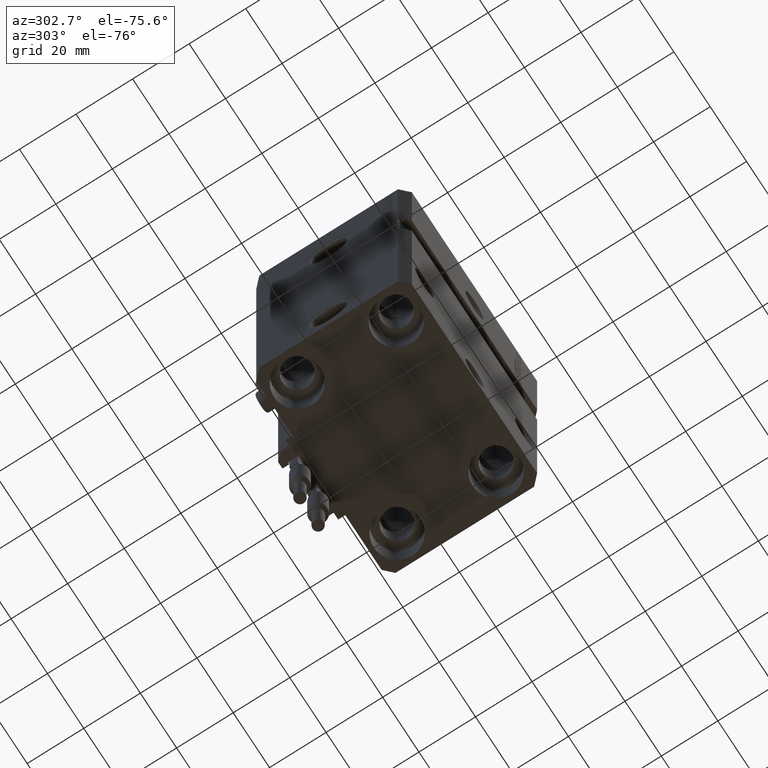
[diagram: clean part render]
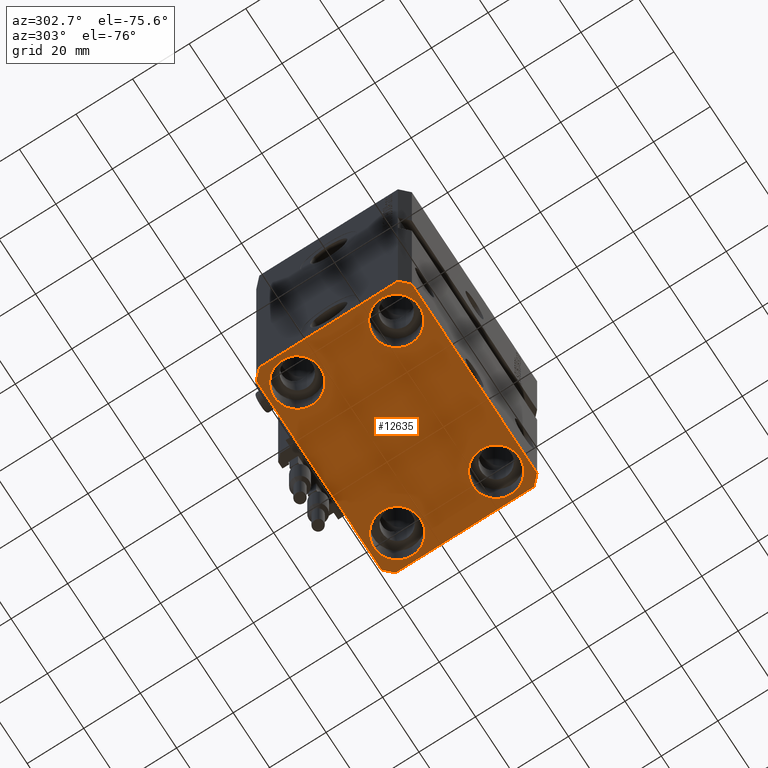
[diagram: same view with one face highlighted and labeled with its STEP entity id]
A machine part, auxiliary view. The second image highlights one B-rep face of the part: STEP entity #12635.
In plain terms, the highlighted planar face has unit normal (0, 0, 1).
Its self-contained STEP definition (entity closure, byte-faithful):
#43 = CARTESIAN_POINT ( 'NONE',  ( -37.49999999999999289, -24.50000000000000000, -110.0000000000000000 ) ) ;
#117 = AXIS2_PLACEMENT_3D ( 'NONE', #2500, #28720, #44000 ) ;
#132 = FACE_BOUND ( 'NONE', #6928, .T. ) ;
#369 = CARTESIAN_POINT ( 'NONE',  ( 37.49999999999999289, -24.50000000000000000, -110.0000000000000000 ) ) ;
#447 = ORIENTED_EDGE ( 'NONE', *, *, #35967, .T. ) ;
#618 = ORIENTED_EDGE ( 'NONE', *, *, #4493, .T. ) ;
#925 = VERTEX_POINT ( 'NONE', #22800 ) ;
#958 = VERTEX_POINT ( 'NONE', #369 ) ;
#1194 = EDGE_CURVE ( 'NONE', #40212, #3404, #39016, .T. ) ;
#2201 = AXIS2_PLACEMENT_3D ( 'NONE', #25204, #42242, #30023 ) ;
#2309 = DIRECTION ( 'NONE',  ( 1.000000000000000000, 0.000000000000000000, 0.000000000000000000 ) ) ;
#2500 = CARTESIAN_POINT ( 'NONE',  ( 27.49999999999999645, 17.50000000000001066, -110.0000000000000000 ) ) ;
#3013 = CARTESIAN_POINT ( 'NONE',  ( 34.49999999999999289, -27.49999999999999645, -110.0000000000000000 ) ) ;
#3304 = VERTEX_POINT ( 'NONE', #20621 ) ;
#3346 = DIRECTION ( 'NONE',  ( 1.076236605503979380E-14, 1.000000000000000000, 0.000000000000000000 ) ) ;
#3404 = VERTEX_POINT ( 'NONE', #17806 ) ;
#3483 = VERTEX_POINT ( 'NONE', #7621 ) ;
#3534 = EDGE_LOOP ( 'NONE', ( #20474, #45605 ) ) ;
#3541 = CARTESIAN_POINT ( 'NONE',  ( 37.50000000000051870, 24.49999999999995381, -110.0000000000000000 ) ) ;
#4098 = LINE ( 'NONE', #38211, #25208 ) ;
#4122 = DIRECTION ( 'NONE',  ( -1.000000000000000000, 0.000000000000000000, 0.000000000000000000 ) ) ;
#4493 = EDGE_CURVE ( 'NONE', #7197, #3304, #30666, .T. ) ;
#4691 = FACE_BOUND ( 'NONE', #3534, .T. ) ;
#5007 = EDGE_CURVE ( 'NONE', #3404, #32825, #23460, .T. ) ;
#5549 = DIRECTION ( 'NONE',  ( 1.000000000000000000, 0.000000000000000000, 0.000000000000000000 ) ) ;
#6452 = VECTOR ( 'NONE', #4122, 1000.000000000000000 ) ;
#6550 = VERTEX_POINT ( 'NONE', #33752 ) ;
#6928 = EDGE_LOOP ( 'NONE', ( #23135, #618 ) ) ;
#7197 = VERTEX_POINT ( 'NONE', #20547 ) ;
#7423 = DIRECTION ( 'NONE',  ( 1.000000000000000000, 0.000000000000000000, 0.000000000000000000 ) ) ;
#7476 = ORIENTED_EDGE ( 'NONE', *, *, #21386, .F. ) ;
#7621 = CARTESIAN_POINT ( 'NONE',  ( 34.50000000000056843, 27.50000000000000000, -110.0000000000000000 ) ) ;
#7955 = AXIS2_PLACEMENT_3D ( 'NONE', #10261, #33428, #17626 ) ;
#8545 = ORIENTED_EDGE ( 'NONE', *, *, #49333, .F. ) ;
#8604 = CARTESIAN_POINT ( 'NONE',  ( -27.50000000000000355, 17.50000000000000000, -110.0000000000000000 ) ) ;
#8646 = ORIENTED_EDGE ( 'NONE', *, *, #18730, .F. ) ;
#10261 = CARTESIAN_POINT ( 'NONE',  ( -27.50000000000000355, -17.50000000000000000, -110.0000000000000000 ) ) ;
#10408 = CARTESIAN_POINT ( 'NONE',  ( -34.49999999999999289, 27.50000000000000000, -110.0000000000000000 ) ) ;
#11390 = EDGE_CURVE ( 'NONE', #21242, #20308, #16069, .T. ) ;
#12624 = CARTESIAN_POINT ( 'NONE',  ( -37.49999999999999289, 24.50000000000000000, -110.0000000000000000 ) ) ;
#12635 = ADVANCED_FACE ( 'NONE', ( #31927, #132, #4691, #31186, #32171 ), #16397, .F. ) ;
#13068 = CIRCLE ( 'NONE', #19580, 8.249999999999992895 ) ;
#13194 = DIRECTION ( 'NONE',  ( 1.000000000000000000, 0.000000000000000000, 0.000000000000000000 ) ) ;
#13649 = VECTOR ( 'NONE', #35400, 1000.000000000000000 ) ;
#13980 = AXIS2_PLACEMENT_3D ( 'NONE', #49934, #15044, #7423 ) ;
#15044 = DIRECTION ( 'NONE',  ( -0.000000000000000000, -0.000000000000000000, 1.000000000000000000 ) ) ;
#15561 = CIRCLE ( 'NONE', #117, 8.249999999999992895 ) ;
#15916 = ORIENTED_EDGE ( 'NONE', *, *, #24602, .T. ) ;
#16055 = CARTESIAN_POINT ( 'NONE',  ( 34.50000000000056843, 27.50000000000000000, -110.0000000000000000 ) ) ;
#16069 = CIRCLE ( 'NONE', #7955, 8.250000000000000000 ) ;
#16080 = ORIENTED_EDGE ( 'NONE', *, *, #24177, .T. ) ;
#16397 = PLANE ( 'NONE',  #21803 ) ;
#16398 = DIRECTION ( 'NONE',  ( -0.000000000000000000, -0.000000000000000000, 1.000000000000000000 ) ) ;
#16614 = EDGE_CURVE ( 'NONE', #30756, #40212, #28548, .T. ) ;
#17198 = VECTOR ( 'NONE', #13194, 1000.000000000000000 ) ;
#17211 = CARTESIAN_POINT ( 'NONE',  ( -34.49999999999998579, -27.49999999999999645, -110.0000000000000000 ) ) ;
#17239 = CARTESIAN_POINT ( 'NONE',  ( 35.74999999999999289, 17.50000000000001066, -110.0000000000000000 ) ) ;
#17626 = DIRECTION ( 'NONE',  ( 1.000000000000000000, 0.000000000000000000, 0.000000000000000000 ) ) ;
#17693 = EDGE_CURVE ( 'NONE', #6550, #27688, #13068, .T. ) ;
#17806 = CARTESIAN_POINT ( 'NONE',  ( -37.49999999999999289, -24.50000000000000000, -110.0000000000000000 ) ) ;
#18093 = ORIENTED_EDGE ( 'NONE', *, *, #16614, .F. ) ;
#18730 = EDGE_CURVE ( 'NONE', #958, #20092, #4098, .T. ) ;
#18976 = EDGE_CURVE ( 'NONE', #20092, #3483, #38409, .T. ) ;
#19057 = DIRECTION ( 'NONE',  ( -0.7071067811865356934, 0.7071067811865594521, 0.000000000000000000 ) ) ;
#19478 = DIRECTION ( 'NONE',  ( 0.000000000000000000, 0.000000000000000000, 1.000000000000000000 ) ) ;
#19580 = AXIS2_PLACEMENT_3D ( 'NONE', #20211, #16398, #31928 ) ;
#19712 = CIRCLE ( 'NONE', #24584, 8.250000000000000000 ) ;
#20048 = DIRECTION ( 'NONE',  ( 1.000000000000000000, 0.000000000000000000, 0.000000000000000000 ) ) ;
#20092 = VERTEX_POINT ( 'NONE', #29042 ) ;
#20211 = CARTESIAN_POINT ( 'NONE',  ( 27.49999999999999645, 17.50000000000001066, -110.0000000000000000 ) ) ;
#20308 = VERTEX_POINT ( 'NONE', #39677 ) ;
#20474 = ORIENTED_EDGE ( 'NONE', *, *, #17693, .T. ) ;
#20547 = CARTESIAN_POINT ( 'NONE',  ( 35.75000000000000711, -17.50000000000000000, -110.0000000000000000 ) ) ;
#20621 = CARTESIAN_POINT ( 'NONE',  ( 19.25000000000000000, -17.50000000000000000, -110.0000000000000000 ) ) ;
#20651 = DIRECTION ( 'NONE',  ( -0.7071067811865471286, -0.7071067811865479058, 0.000000000000000000 ) ) ;
#20702 = CARTESIAN_POINT ( 'NONE',  ( -19.25000000000000355, 17.50000000000000000, -110.0000000000000000 ) ) ;
#21242 = VERTEX_POINT ( 'NONE', #33185 ) ;
#21386 = EDGE_CURVE ( 'NONE', #925, #958, #22360, .T. ) ;
#21803 = AXIS2_PLACEMENT_3D ( 'NONE', #23545, #19478, #38827 ) ;
#22360 = LINE ( 'NONE', #3013, #30951 ) ;
#22800 = CARTESIAN_POINT ( 'NONE',  ( 34.49999999999999289, -27.49999999999999645, -110.0000000000000000 ) ) ;
#22840 = ORIENTED_EDGE ( 'NONE', *, *, #18976, .F. ) ;
#23135 = ORIENTED_EDGE ( 'NONE', *, *, #40415, .T. ) ;
#23460 = LINE ( 'NONE', #43, #13649 ) ;
#23545 = CARTESIAN_POINT ( 'NONE',  ( 0.000000000000000000, 0.000000000000000000, -110.0000000000000000 ) ) ;
#23573 = VECTOR ( 'NONE', #19057, 1000.000000000000114 ) ;
#23807 = ORIENTED_EDGE ( 'NONE', *, *, #11390, .T. ) ;
#24125 = CARTESIAN_POINT ( 'NONE',  ( 27.50000000000000355, -17.50000000000000000, -110.0000000000000000 ) ) ;
#24177 = EDGE_CURVE ( 'NONE', #50001, #48686, #32680, .T. ) ;
#24387 = DIRECTION ( 'NONE',  ( -0.000000000000000000, -0.000000000000000000, 1.000000000000000000 ) ) ;
#24584 = AXIS2_PLACEMENT_3D ( 'NONE', #8604, #39405, #20048 ) ;
#24602 = EDGE_CURVE ( 'NONE', #48686, #50001, #19712, .T. ) ;
#24892 = CARTESIAN_POINT ( 'NONE',  ( -34.49999999999998579, -27.49999999999999645, -110.0000000000000000 ) ) ;
#25081 = CARTESIAN_POINT ( 'NONE',  ( -35.75000000000000711, 17.50000000000000000, -110.0000000000000000 ) ) ;
#25204 = CARTESIAN_POINT ( 'NONE',  ( -27.50000000000000355, -17.50000000000000000, -110.0000000000000000 ) ) ;
#25208 = VECTOR ( 'NONE', #3346, 1000.000000000000000 ) ;
#27281 = LINE ( 'NONE', #16055, #6452 ) ;
#27688 = VERTEX_POINT ( 'NONE', #17239 ) ;
#28548 = LINE ( 'NONE', #43562, #47969 ) ;
#28720 = DIRECTION ( 'NONE',  ( -0.000000000000000000, -0.000000000000000000, 1.000000000000000000 ) ) ;
#29042 = CARTESIAN_POINT ( 'NONE',  ( 37.50000000000051870, 24.49999999999995381, -110.0000000000000000 ) ) ;
#30023 = DIRECTION ( 'NONE',  ( 1.000000000000000000, 0.000000000000000000, 0.000000000000000000 ) ) ;
#30666 = CIRCLE ( 'NONE', #33094, 8.250000000000000000 ) ;
#30756 = VERTEX_POINT ( 'NONE', #10408 ) ;
#30951 = VECTOR ( 'NONE', #34816, 1000.000000000000114 ) ;
#31126 = CARTESIAN_POINT ( 'NONE',  ( -37.49999999999999289, 24.50000000000000000, -110.0000000000000000 ) ) ;
#31186 = FACE_BOUND ( 'NONE', #33895, .T. ) ;
#31523 = ORIENTED_EDGE ( 'NONE', *, *, #5007, .F. ) ;
#31927 = FACE_BOUND ( 'NONE', #45899, .T. ) ;
#31928 = DIRECTION ( 'NONE',  ( 1.000000000000000000, 0.000000000000000000, 0.000000000000000000 ) ) ;
#32171 = FACE_OUTER_BOUND ( 'NONE', #37223, .T. ) ;
#32537 = LINE ( 'NONE', #24892, #17198 ) ;
#32680 = CIRCLE ( 'NONE', #13980, 8.250000000000000000 ) ;
#32825 = VERTEX_POINT ( 'NONE', #17211 ) ;
#33083 = CIRCLE ( 'NONE', #2201, 8.250000000000000000 ) ;
#33094 = AXIS2_PLACEMENT_3D ( 'NONE', #24125, #24387, #5549 ) ;
#33185 = CARTESIAN_POINT ( 'NONE',  ( -19.25000000000000355, -17.50000000000000000, -110.0000000000000000 ) ) ;
#33268 = AXIS2_PLACEMENT_3D ( 'NONE', #37173, #41007, #2309 ) ;
#33384 = ORIENTED_EDGE ( 'NONE', *, *, #1194, .F. ) ;
#33428 = DIRECTION ( 'NONE',  ( -0.000000000000000000, -0.000000000000000000, 1.000000000000000000 ) ) ;
#33507 = ORIENTED_EDGE ( 'NONE', *, *, #45128, .F. ) ;
#33752 = CARTESIAN_POINT ( 'NONE',  ( 19.25000000000000000, 17.50000000000001066, -110.0000000000000000 ) ) ;
#33895 = EDGE_LOOP ( 'NONE', ( #15916, #16080 ) ) ;
#34816 = DIRECTION ( 'NONE',  ( 0.7071067811865474617, 0.7071067811865474617, 0.000000000000000000 ) ) ;
#35400 = DIRECTION ( 'NONE',  ( 0.7071067811865483499, -0.7071067811865466846, 0.000000000000000000 ) ) ;
#35967 = EDGE_CURVE ( 'NONE', #20308, #21242, #33083, .T. ) ;
#37173 = CARTESIAN_POINT ( 'NONE',  ( 27.50000000000000355, -17.50000000000000000, -110.0000000000000000 ) ) ;
#37223 = EDGE_LOOP ( 'NONE', ( #33507, #22840, #8646, #7476, #8545, #31523, #33384, #18093 ) ) ;
#38012 = DIRECTION ( 'NONE',  ( 0.000000000000000000, -1.000000000000000000, 0.000000000000000000 ) ) ;
#38211 = CARTESIAN_POINT ( 'NONE',  ( 37.49999999999999289, -24.50000000000000000, -110.0000000000000000 ) ) ;
#38409 = LINE ( 'NONE', #3541, #23573 ) ;
#38827 = DIRECTION ( 'NONE',  ( 1.000000000000000000, 0.000000000000000000, -0.000000000000000000 ) ) ;
#39016 = LINE ( 'NONE', #31126, #41251 ) ;
#39405 = DIRECTION ( 'NONE',  ( -0.000000000000000000, -0.000000000000000000, 1.000000000000000000 ) ) ;
#39677 = CARTESIAN_POINT ( 'NONE',  ( -35.75000000000000711, -17.50000000000000000, -110.0000000000000000 ) ) ;
#40212 = VERTEX_POINT ( 'NONE', #12624 ) ;
#40415 = EDGE_CURVE ( 'NONE', #3304, #7197, #43825, .T. ) ;
#41007 = DIRECTION ( 'NONE',  ( -0.000000000000000000, -0.000000000000000000, 1.000000000000000000 ) ) ;
#41251 = VECTOR ( 'NONE', #38012, 1000.000000000000000 ) ;
#42242 = DIRECTION ( 'NONE',  ( -0.000000000000000000, -0.000000000000000000, 1.000000000000000000 ) ) ;
#43562 = CARTESIAN_POINT ( 'NONE',  ( -34.49999999999999289, 27.50000000000000000, -110.0000000000000000 ) ) ;
#43825 = CIRCLE ( 'NONE', #33268, 8.250000000000000000 ) ;
#44000 = DIRECTION ( 'NONE',  ( 1.000000000000000000, 0.000000000000000000, 0.000000000000000000 ) ) ;
#45128 = EDGE_CURVE ( 'NONE', #3483, #30756, #27281, .T. ) ;
#45605 = ORIENTED_EDGE ( 'NONE', *, *, #49263, .T. ) ;
#45899 = EDGE_LOOP ( 'NONE', ( #447, #23807 ) ) ;
#47969 = VECTOR ( 'NONE', #20651, 1000.000000000000000 ) ;
#48686 = VERTEX_POINT ( 'NONE', #25081 ) ;
#49263 = EDGE_CURVE ( 'NONE', #27688, #6550, #15561, .T. ) ;
#49333 = EDGE_CURVE ( 'NONE', #32825, #925, #32537, .T. ) ;
#49934 = CARTESIAN_POINT ( 'NONE',  ( -27.50000000000000355, 17.50000000000000000, -110.0000000000000000 ) ) ;
#50001 = VERTEX_POINT ( 'NONE', #20702 ) ;